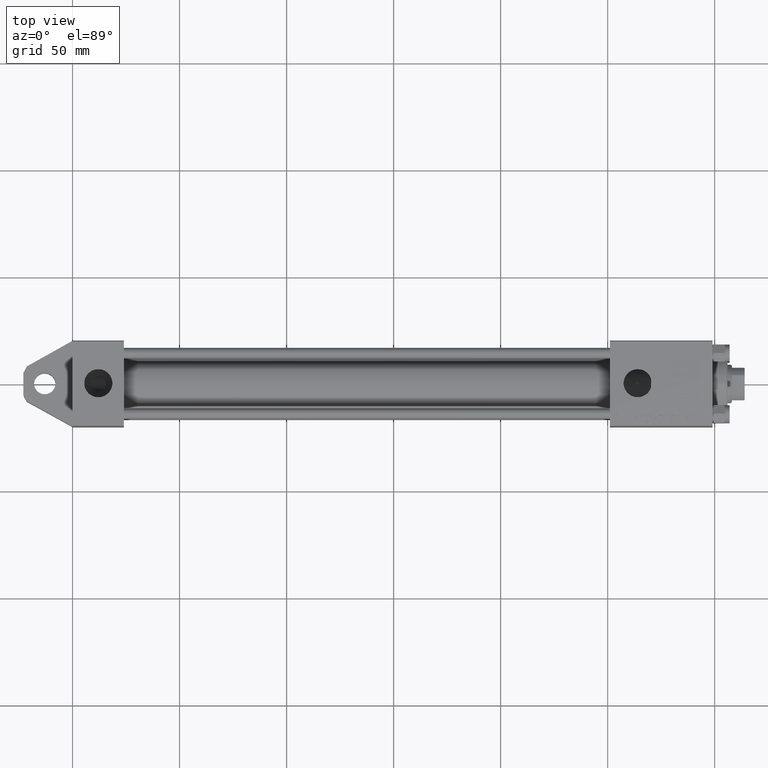
[diagram: clean part render]
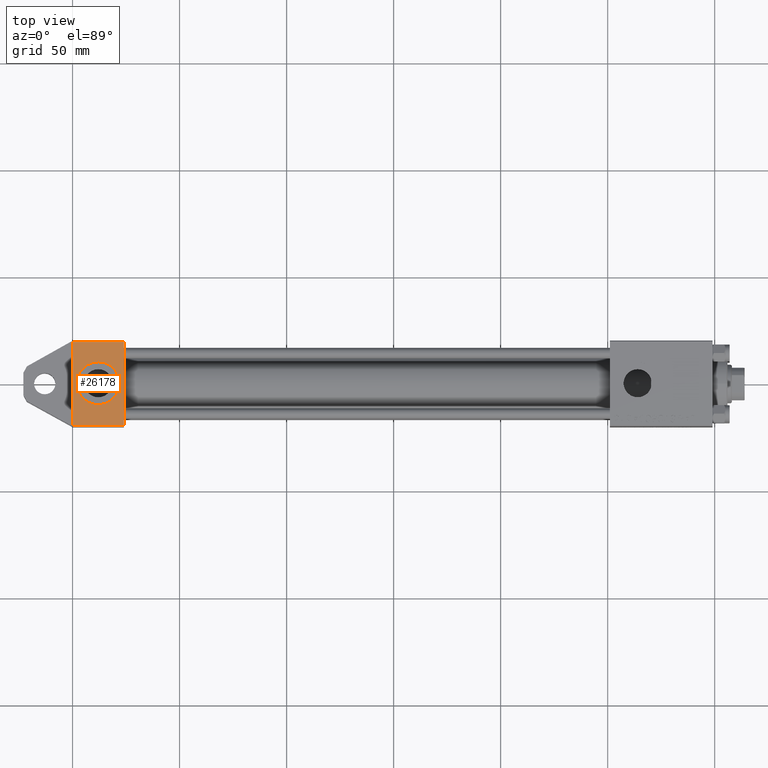
[diagram: same view with one face highlighted and labeled with its STEP entity id]
A machine part, top view. The second image highlights one B-rep face of the part: STEP entity #26178.
In plain terms, the highlighted planar face has unit normal (0, 0, -1).
Its self-contained STEP definition (entity closure, byte-faithful):
#784 = DIRECTION ( 'NONE',  ( 0.000000000000000000, 8.673617379884036705E-17, -1.000000000000000000 ) ) ;
#1052 = CARTESIAN_POINT ( 'NONE',  ( 24.00000000000000000, -20.00000000000000355, 19.99999999999998934 ) ) ;
#1109 = LINE ( 'NONE', #21124, #18602 ) ;
#2385 = CARTESIAN_POINT ( 'NONE',  ( 0.000000000000000000, -20.00000000000000355, 19.49999999999998224 ) ) ;
#4277 = CARTESIAN_POINT ( 'NONE',  ( 0.000000000000000000, -20.00000000000000355, 19.99999999999998934 ) ) ;
#5778 = FACE_OUTER_BOUND ( 'NONE', #33268, .T. ) ;
#8526 = PLANE ( 'NONE',  #33080 ) ;
#9727 = VERTEX_POINT ( 'NONE', #22970 ) ;
#9938 = CARTESIAN_POINT ( 'NONE',  ( 24.00000000000000000, -20.00000000000000000, -19.49999999999999645 ) ) ;
#10274 = VERTEX_POINT ( 'NONE', #20579 ) ;
#10345 = ORIENTED_EDGE ( 'NONE', *, *, #28564, .T. ) ;
#11462 = CARTESIAN_POINT ( 'NONE',  ( 0.000000000000000000, -20.00000000000000000, -19.49999999999999645 ) ) ;
#13085 = CARTESIAN_POINT ( 'NONE',  ( 24.00000000000000000, -20.00000000000000355, 19.99999999999998934 ) ) ;
#13859 = AXIS2_PLACEMENT_3D ( 'NONE', #42352, #35094, #42106 ) ;
#14900 = ORIENTED_EDGE ( 'NONE', *, *, #21077, .F. ) ;
#15462 = CIRCLE ( 'NONE', #13859, 9.999999999999996447 ) ;
#16802 = FACE_BOUND ( 'NONE', #22682, .T. ) ;
#18419 = ORIENTED_EDGE ( 'NONE', *, *, #25885, .T. ) ;
#18602 = VECTOR ( 'NONE', #24151, 1000.000000000000000 ) ;
#18985 = DIRECTION ( 'NONE',  ( 0.000000000000000000, 0.000000000000000000, -1.000000000000000000 ) ) ;
#20579 = CARTESIAN_POINT ( 'NONE',  ( 12.00000000000000000, -20.00000000000000355, -9.999999999999998224 ) ) ;
#20962 = VECTOR ( 'NONE', #23971, 1000.000000000000000 ) ;
#21077 = EDGE_CURVE ( 'NONE', #10274, #9727, #27305, .T. ) ;
#21124 = CARTESIAN_POINT ( 'NONE',  ( 24.00000000000000000, -20.00000000000000355, 19.49999999999998224 ) ) ;
#21277 = VERTEX_POINT ( 'NONE', #9938 ) ;
#22682 = EDGE_LOOP ( 'NONE', ( #14900, #43999 ) ) ;
#22970 = CARTESIAN_POINT ( 'NONE',  ( 12.00000000000000178, -20.00000000000000355, 9.999999999999994671 ) ) ;
#22971 = EDGE_CURVE ( 'NONE', #27965, #21277, #27755, .T. ) ;
#23314 = LINE ( 'NONE', #4277, #37161 ) ;
#23971 = DIRECTION ( 'NONE',  ( 1.000000000000000000, 0.000000000000000000, 0.000000000000000000 ) ) ;
#24151 = DIRECTION ( 'NONE',  ( -1.000000000000000000, 0.000000000000000000, 0.000000000000000000 ) ) ;
#24419 = VERTEX_POINT ( 'NONE', #46904 ) ;
#24872 = LINE ( 'NONE', #13085, #35168 ) ;
#25885 = EDGE_CURVE ( 'NONE', #24419, #40824, #1109, .T. ) ;
#26178 = ADVANCED_FACE ( 'NONE', ( #16802, #5778 ), #8526, .F. ) ;
#26450 = EDGE_CURVE ( 'NONE', #9727, #10274, #15462, .T. ) ;
#27305 = CIRCLE ( 'NONE', #42526, 9.999999999999996447 ) ;
#27755 = LINE ( 'NONE', #31528, #20962 ) ;
#27965 = VERTEX_POINT ( 'NONE', #11462 ) ;
#28564 = EDGE_CURVE ( 'NONE', #40824, #27965, #23314, .T. ) ;
#28649 = DIRECTION ( 'NONE',  ( 0.000000000000000000, 8.673617379884036705E-17, -1.000000000000000000 ) ) ;
#30562 = CARTESIAN_POINT ( 'NONE',  ( 12.00000000000000000, -20.00000000000000355, -1.734723475976807883E-15 ) ) ;
#31528 = CARTESIAN_POINT ( 'NONE',  ( 24.00000000000000000, -20.00000000000000000, -19.49999999999999645 ) ) ;
#32625 = DIRECTION ( 'NONE',  ( 0.000000000000000000, -8.673617379884036705E-17, 1.000000000000000000 ) ) ;
#33080 = AXIS2_PLACEMENT_3D ( 'NONE', #1052, #39407, #32625 ) ;
#33268 = EDGE_LOOP ( 'NONE', ( #10345, #46732, #40718, #18419 ) ) ;
#35094 = DIRECTION ( 'NONE',  ( 0.000000000000000000, -1.000000000000000000, -8.673617379884036705E-17 ) ) ;
#35168 = VECTOR ( 'NONE', #28649, 1000.000000000000000 ) ;
#37161 = VECTOR ( 'NONE', #784, 1000.000000000000000 ) ;
#39407 = DIRECTION ( 'NONE',  ( -0.000000000000000000, 1.000000000000000000, 8.673617379884036705E-17 ) ) ;
#40718 = ORIENTED_EDGE ( 'NONE', *, *, #41454, .F. ) ;
#40824 = VERTEX_POINT ( 'NONE', #2385 ) ;
#41454 = EDGE_CURVE ( 'NONE', #24419, #21277, #24872, .T. ) ;
#42106 = DIRECTION ( 'NONE',  ( 0.000000000000000000, 0.000000000000000000, -1.000000000000000000 ) ) ;
#42352 = CARTESIAN_POINT ( 'NONE',  ( 12.00000000000000000, -20.00000000000000355, -1.734723475976807883E-15 ) ) ;
#42526 = AXIS2_PLACEMENT_3D ( 'NONE', #30562, #49130, #18985 ) ;
#43999 = ORIENTED_EDGE ( 'NONE', *, *, #26450, .F. ) ;
#46732 = ORIENTED_EDGE ( 'NONE', *, *, #22971, .T. ) ;
#46904 = CARTESIAN_POINT ( 'NONE',  ( 24.00000000000000000, -20.00000000000000355, 19.49999999999998224 ) ) ;
#49130 = DIRECTION ( 'NONE',  ( 0.000000000000000000, -1.000000000000000000, -8.673617379884036705E-17 ) ) ;